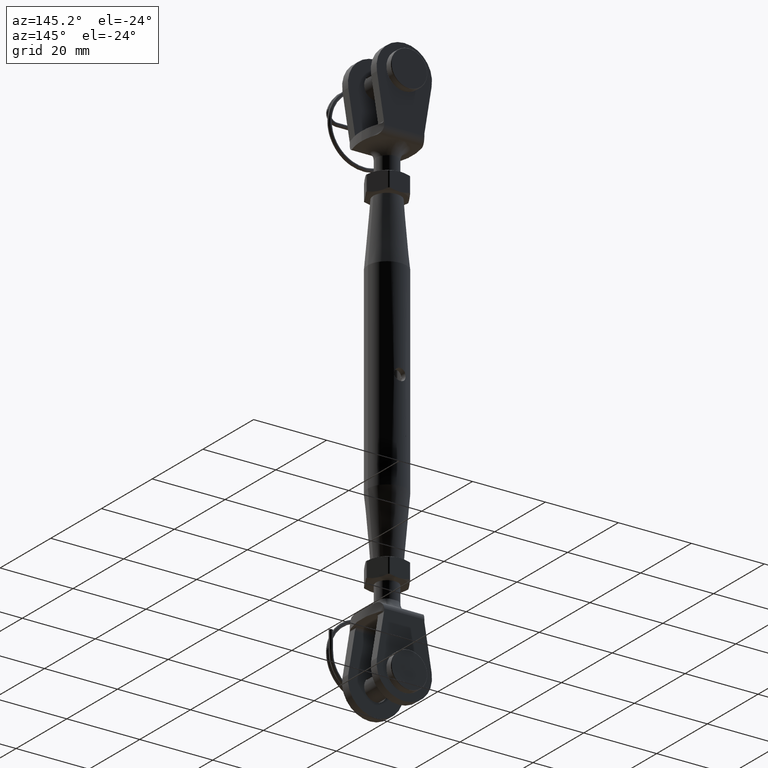
[diagram: clean part render]
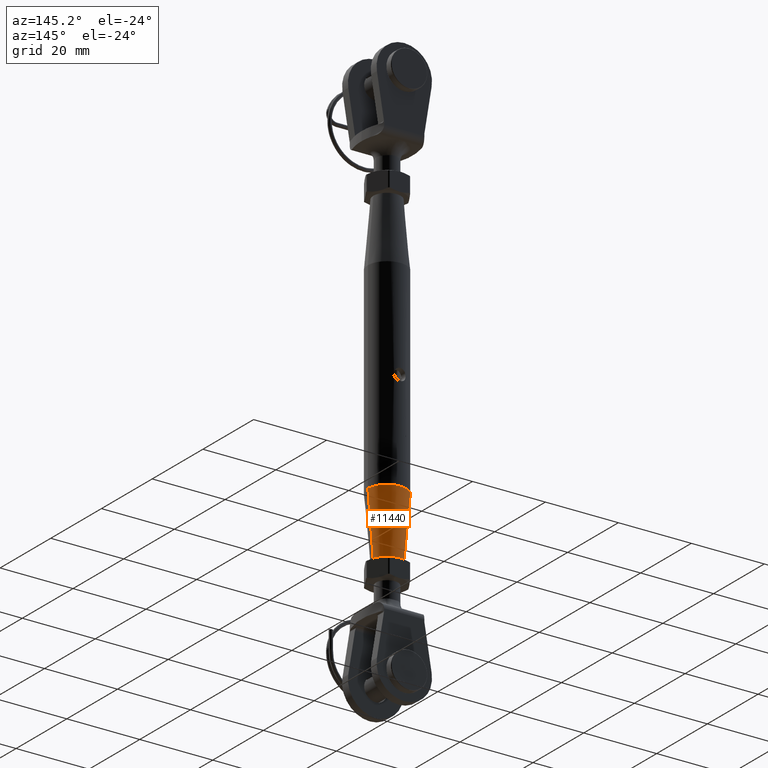
[diagram: same view with one face highlighted and labeled with its STEP entity id]
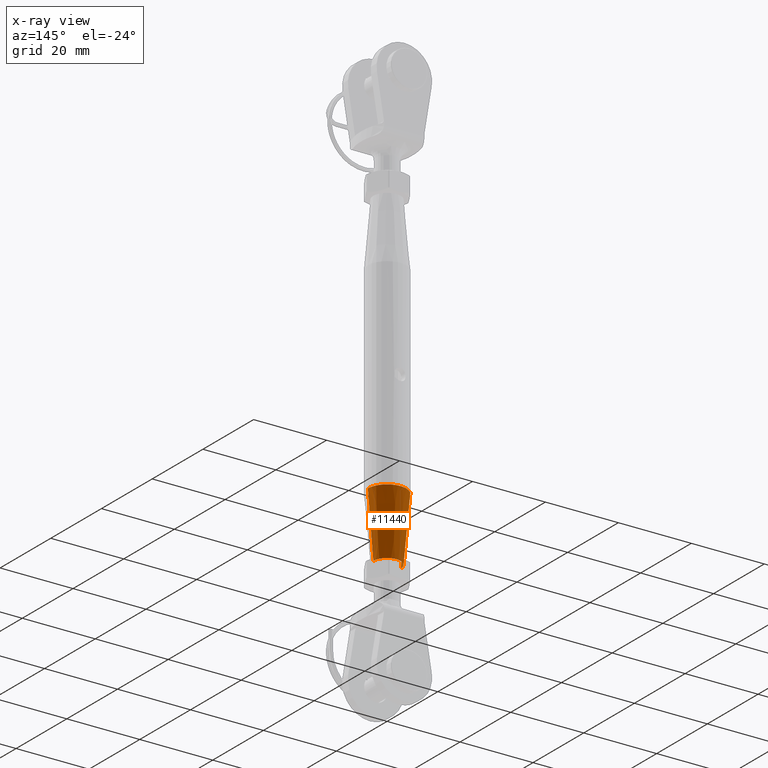
[diagram: x-ray of the same camera — body ghosted, the highlighted face saturated]
A machine part, auxiliary view. The second image highlights one B-rep face of the part: STEP entity #11440.
The next image is the same camera in x-ray: the body ghosted, the highlighted face saturated — about 0% of this face is hidden behind the body in this view.
In plain terms, the highlighted conical surface has half-angle 4.899 deg.
Its self-contained STEP definition (entity closure, byte-faithful):
#637 = VECTOR ( 'NONE', #5162, 1000.000000000000000 ) ;
#674 = LINE ( 'NONE', #21194, #637 ) ;
#2193 = CARTESIAN_POINT ( 'NONE',  ( -3.750000000000000000, 4.592425496802574000E-016, -45.00000000000000000 ) ) ;
#2416 = VECTOR ( 'NONE', #4558, 1000.000000000000000 ) ;
#3189 = CARTESIAN_POINT ( 'NONE',  ( 5.249999999999994700, 0.0000000000000000000, -27.49999999999999600 ) ) ;
#4558 = DIRECTION ( 'NONE',  ( -0.08540114134643547700, 1.045862343934428900E-017, 0.9963466490417509600 ) ) ;
#5162 = DIRECTION ( 'NONE',  ( 0.08540114134643547700, 0.0000000000000000000, 0.9963466490417509600 ) ) ;
#6028 = EDGE_CURVE ( 'NONE', #20644, #26082, #8776, .T. ) ;
#6226 = ORIENTED_EDGE ( 'NONE', *, *, #26590, .F. ) ;
#6662 = EDGE_LOOP ( 'NONE', ( #29065, #16037, #6226, #22195 ) ) ;
#6899 = EDGE_CURVE ( 'NONE', #8966, #8718, #674, .T. ) ;
#7540 = EDGE_CURVE ( 'NONE', #8966, #20644, #24733, .T. ) ;
#7558 = CARTESIAN_POINT ( 'NONE',  ( 0.0000000000000000000, 0.0000000000000000000, -45.00000000000000000 ) ) ;
#8718 = VERTEX_POINT ( 'NONE', #3189 ) ;
#8776 = LINE ( 'NONE', #2193, #2416 ) ;
#8966 = VERTEX_POINT ( 'NONE', #11256 ) ;
#9235 = CARTESIAN_POINT ( 'NONE',  ( 0.0000000000000000000, 0.0000000000000000000, -45.00000000000000000 ) ) ;
#10006 = DIRECTION ( 'NONE',  ( 1.000000000000000000, 0.0000000000000000000, 0.0000000000000000000 ) ) ;
#10619 = AXIS2_PLACEMENT_3D ( 'NONE', #7558, #27851, #10006 ) ;
#11256 = CARTESIAN_POINT ( 'NONE',  ( 3.750000000000000000, 0.0000000000000000000, -45.00000000000000000 ) ) ;
#11440 = ADVANCED_FACE ( 'NONE', ( #19444 ), #17690, .T. ) ;
#13573 = DIRECTION ( 'NONE',  ( -0.0000000000000000000, -0.0000000000000000000, 1.000000000000000000 ) ) ;
#14298 = CARTESIAN_POINT ( 'NONE',  ( 0.0000000000000000000, 0.0000000000000000000, -27.49999999999999600 ) ) ;
#15654 = DIRECTION ( 'NONE',  ( 1.000000000000000000, 0.0000000000000000000, 0.0000000000000000000 ) ) ;
#16037 = ORIENTED_EDGE ( 'NONE', *, *, #6028, .T. ) ;
#17690 = CONICAL_SURFACE ( 'NONE', #10619, 3.750000000000000000, 0.08550529367820432200 ) ;
#19444 = FACE_OUTER_BOUND ( 'NONE', #6662, .T. ) ;
#20222 = CIRCLE ( 'NONE', #27482, 5.249999999999994700 ) ;
#20644 = VERTEX_POINT ( 'NONE', #23709 ) ;
#21194 = CARTESIAN_POINT ( 'NONE',  ( 3.750000000000000000, 0.0000000000000000000, -45.00000000000000000 ) ) ;
#21346 = DIRECTION ( 'NONE',  ( -0.0000000000000000000, -0.0000000000000000000, 1.000000000000000000 ) ) ;
#21633 = AXIS2_PLACEMENT_3D ( 'NONE', #9235, #13573, #15654 ) ;
#22195 = ORIENTED_EDGE ( 'NONE', *, *, #6899, .F. ) ;
#23709 = CARTESIAN_POINT ( 'NONE',  ( -3.750000000000000000, 5.510910596163084600E-016, -45.00000000000000000 ) ) ;
#24733 = CIRCLE ( 'NONE', #21633, 3.750000000000000000 ) ;
#25899 = DIRECTION ( 'NONE',  ( 1.000000000000000000, 0.0000000000000000000, 0.0000000000000000000 ) ) ;
#26082 = VERTEX_POINT ( 'NONE', #29074 ) ;
#26590 = EDGE_CURVE ( 'NONE', #8718, #26082, #20222, .T. ) ;
#27482 = AXIS2_PLACEMENT_3D ( 'NONE', #14298, #21346, #25899 ) ;
#27851 = DIRECTION ( 'NONE',  ( -0.0000000000000000000, -0.0000000000000000000, 1.000000000000000000 ) ) ;
#29065 = ORIENTED_EDGE ( 'NONE', *, *, #7540, .T. ) ;
#29074 = CARTESIAN_POINT ( 'NONE',  ( -5.249999999999994700, 6.429395695523597300E-016, -27.49999999999999600 ) ) ;